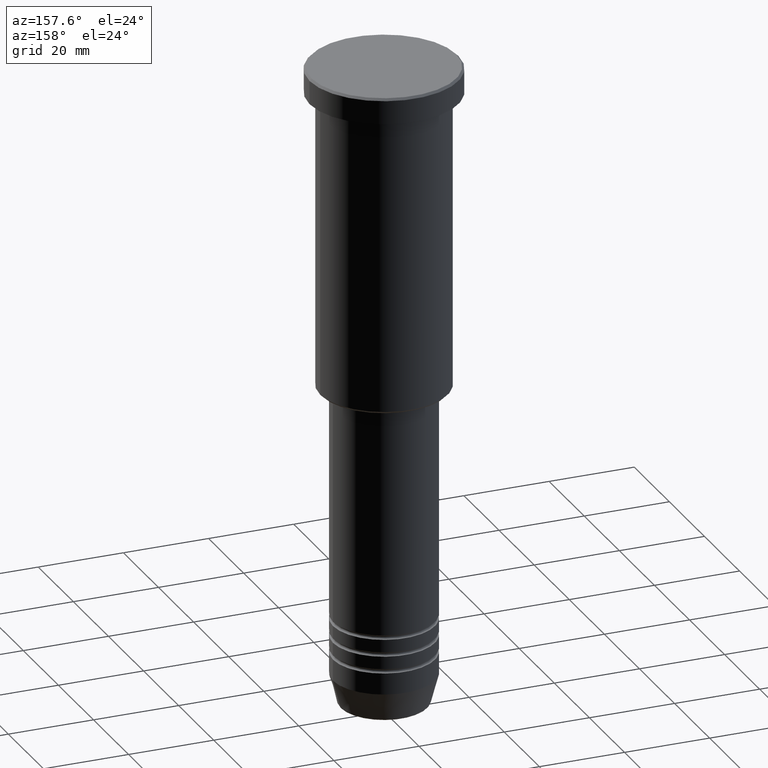
[diagram: clean part render]
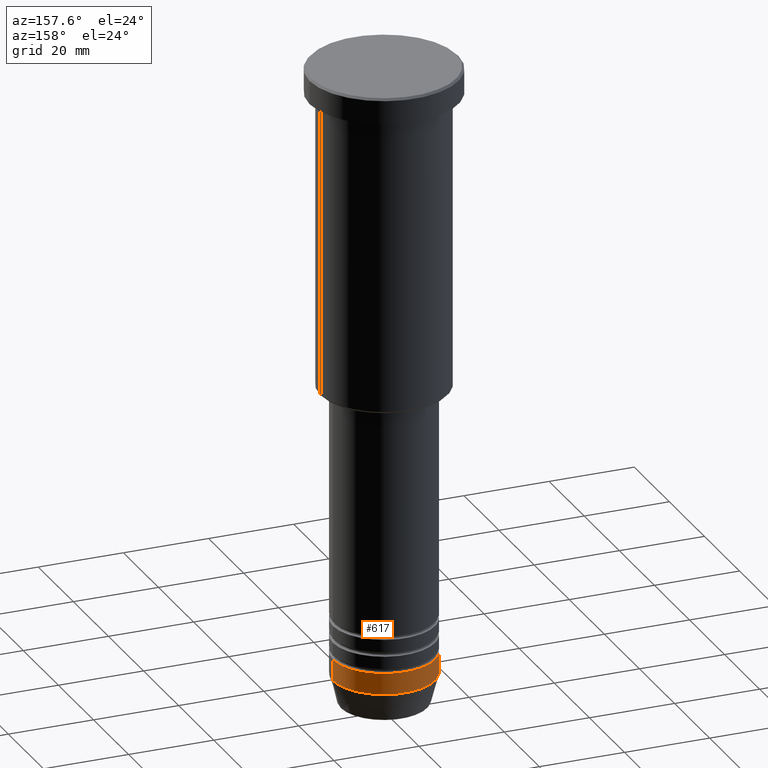
[diagram: same view with one face highlighted and labeled with its STEP entity id]
A machine part, auxiliary view. The second image highlights one B-rep face of the part: STEP entity #617.
In plain terms, the highlighted cylindrical surface (partial cylindrical patch) has radius 12 mm, axis along (-0, -0, 1).
Its self-contained STEP definition (entity closure, byte-faithful):
#10 = FACE_OUTER_BOUND ( 'NONE', #189, .T. ) ;
#13 = LINE ( 'NONE', #752, #186 ) ;
#67 = CARTESIAN_POINT ( 'NONE',  ( 12.00000000000000000, 0.000000000000000000, -144.0000000000000284 ) ) ;
#109 = CARTESIAN_POINT ( 'NONE',  ( 12.00000000000000000, 0.000000000000000000, 0.000000000000000000 ) ) ;
#178 = ORIENTED_EDGE ( 'NONE', *, *, #1009, .T. ) ;
#186 = VECTOR ( 'NONE', #566, 1000.000000000000000 ) ;
#189 = EDGE_LOOP ( 'NONE', ( #605, #178, #625, #907 ) ) ;
#196 = AXIS2_PLACEMENT_3D ( 'NONE', #580, #986, #901 ) ;
#209 = LINE ( 'NONE', #109, #655 ) ;
#211 = VERTEX_POINT ( 'NONE', #656 ) ;
#229 = CIRCLE ( 'NONE', #196, 12.00000000000000000 ) ;
#316 = DIRECTION ( 'NONE',  ( 1.000000000000000000, 0.000000000000000000, 0.000000000000000000 ) ) ;
#331 = AXIS2_PLACEMENT_3D ( 'NONE', #1135, #856, #316 ) ;
#427 = VERTEX_POINT ( 'NONE', #719 ) ;
#466 = DIRECTION ( 'NONE',  ( -0.000000000000000000, -0.000000000000000000, 1.000000000000000000 ) ) ;
#548 = EDGE_CURVE ( 'NONE', #806, #211, #229, .T. ) ;
#566 = DIRECTION ( 'NONE',  ( -0.000000000000000000, -0.000000000000000000, 1.000000000000000000 ) ) ;
#568 = CARTESIAN_POINT ( 'NONE',  ( 12.00000000000000000, 0.000000000000000000, -139.0000000000000000 ) ) ;
#580 = CARTESIAN_POINT ( 'NONE',  ( 0.000000000000000000, 0.000000000000000000, -144.0000000000000284 ) ) ;
#605 = ORIENTED_EDGE ( 'NONE', *, *, #548, .T. ) ;
#617 = ADVANCED_FACE ( 'NONE', ( #10 ), #651, .T. ) ;
#625 = ORIENTED_EDGE ( 'NONE', *, *, #1005, .F. ) ;
#651 = CYLINDRICAL_SURFACE ( 'NONE', #331, 12.00000000000000000 ) ;
#655 = VECTOR ( 'NONE', #466, 1000.000000000000000 ) ;
#656 = CARTESIAN_POINT ( 'NONE',  ( -12.00000000000000000, 1.469576158976823947E-15, -144.0000000000000284 ) ) ;
#719 = CARTESIAN_POINT ( 'NONE',  ( -12.00000000000000000, 1.469576158976823947E-15, -139.0000000000000000 ) ) ;
#744 = CARTESIAN_POINT ( 'NONE',  ( 0.000000000000000000, 0.000000000000000000, -139.0000000000000000 ) ) ;
#752 = CARTESIAN_POINT ( 'NONE',  ( -12.00000000000000000, 1.469576158976823947E-15, 0.000000000000000000 ) ) ;
#806 = VERTEX_POINT ( 'NONE', #67 ) ;
#856 = DIRECTION ( 'NONE',  ( -0.000000000000000000, -0.000000000000000000, 1.000000000000000000 ) ) ;
#901 = DIRECTION ( 'NONE',  ( 1.000000000000000000, 0.000000000000000000, 0.000000000000000000 ) ) ;
#907 = ORIENTED_EDGE ( 'NONE', *, *, #1163, .F. ) ;
#926 = CIRCLE ( 'NONE', #1122, 12.00000000000000000 ) ;
#986 = DIRECTION ( 'NONE',  ( -0.000000000000000000, -0.000000000000000000, 1.000000000000000000 ) ) ;
#1005 = EDGE_CURVE ( 'NONE', #1045, #427, #926, .T. ) ;
#1009 = EDGE_CURVE ( 'NONE', #211, #427, #13, .T. ) ;
#1019 = DIRECTION ( 'NONE',  ( 1.000000000000000000, 0.000000000000000000, 0.000000000000000000 ) ) ;
#1045 = VERTEX_POINT ( 'NONE', #568 ) ;
#1095 = DIRECTION ( 'NONE',  ( -0.000000000000000000, -0.000000000000000000, 1.000000000000000000 ) ) ;
#1122 = AXIS2_PLACEMENT_3D ( 'NONE', #744, #1095, #1019 ) ;
#1135 = CARTESIAN_POINT ( 'NONE',  ( 0.000000000000000000, 0.000000000000000000, 0.000000000000000000 ) ) ;
#1163 = EDGE_CURVE ( 'NONE', #806, #1045, #209, .T. ) ;